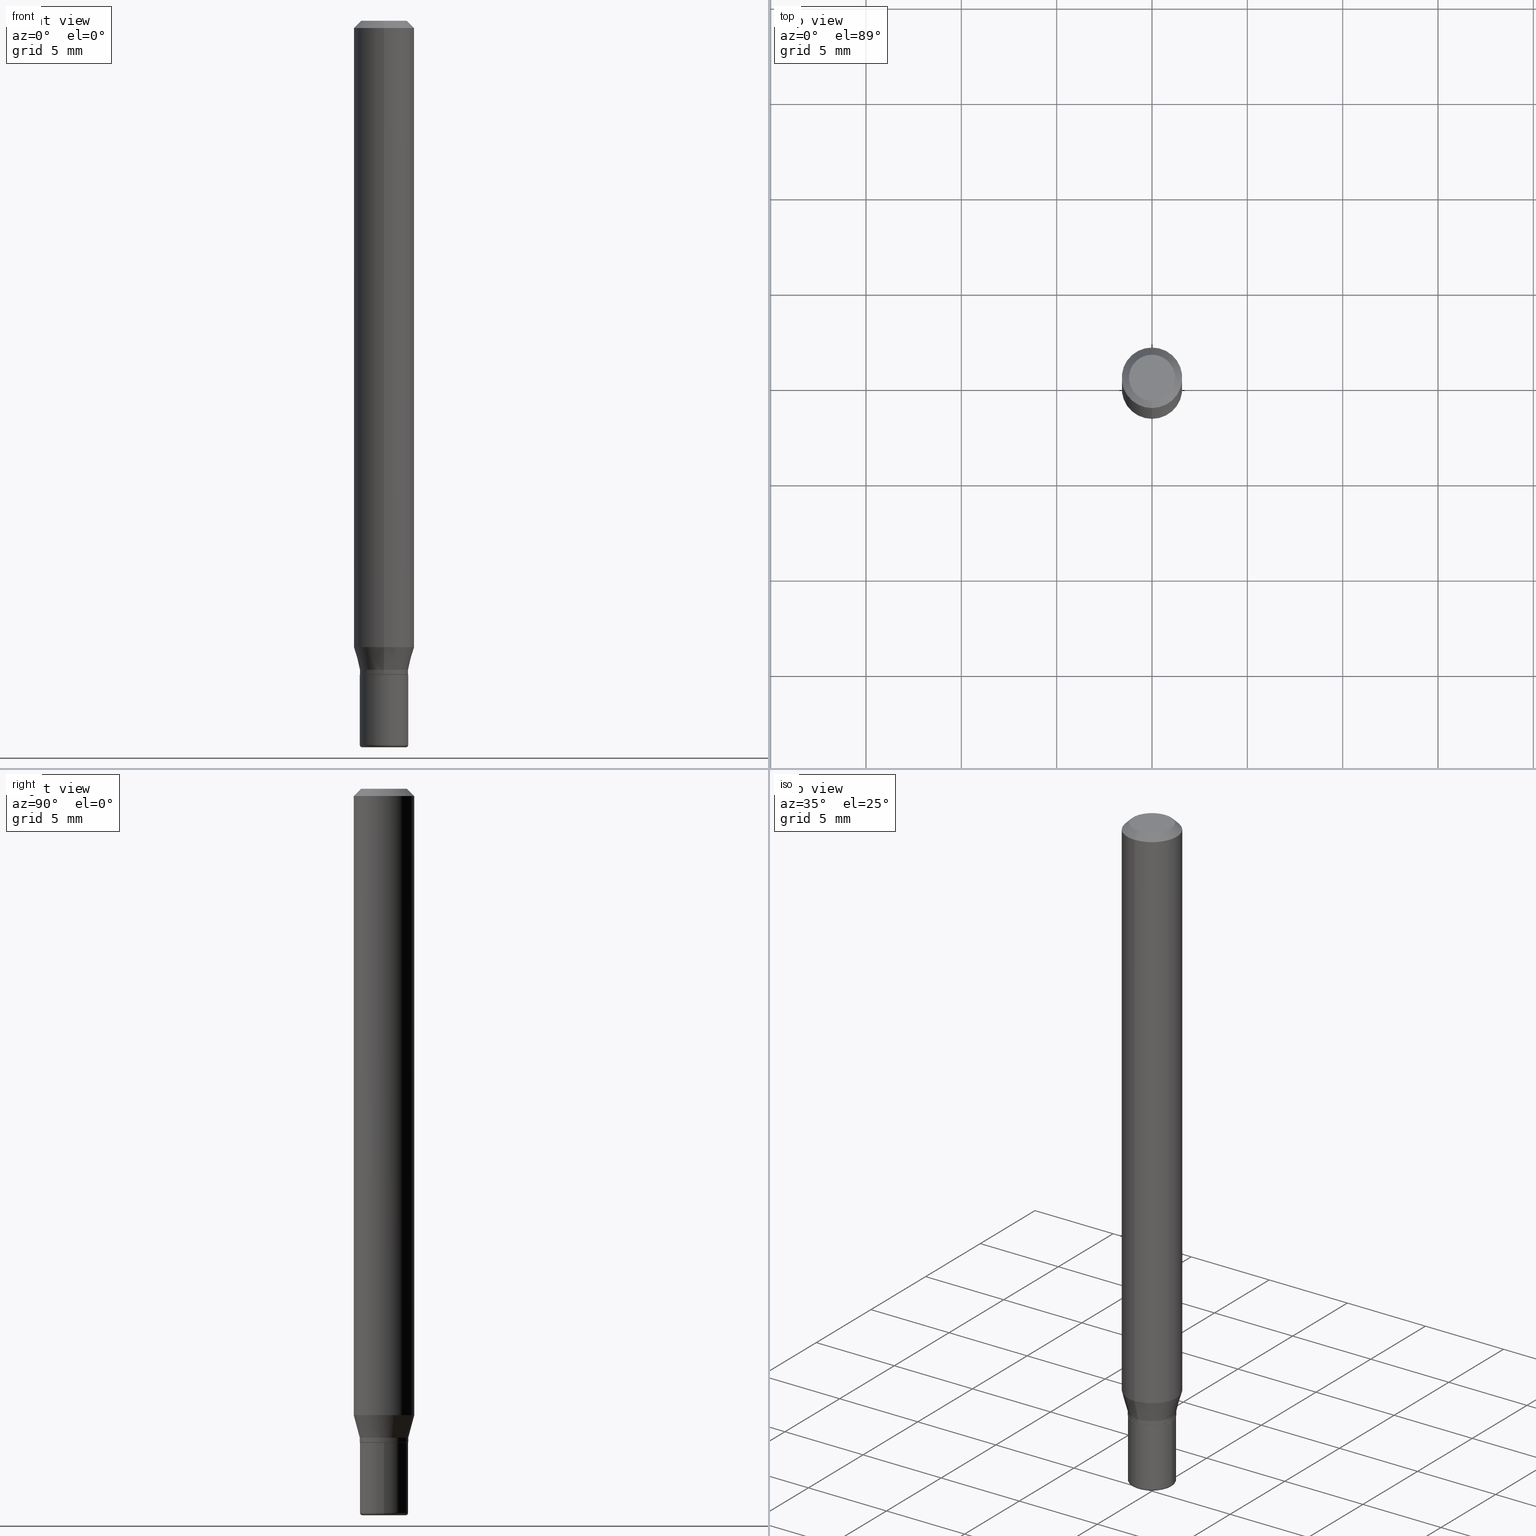
[diagram: canonical four-view strip — front | top / right | iso, engineering-drawing reading convention]
A machine part, canonical four-view strip (front | top / right | iso — engineering-drawing reading convention). The complete STEP part file that produces these views, byte-faithful:
ISO-10303-21;
HEADER;
FILE_DESCRIPTION (( 'STEP AP203' ),
    '1' );
FILE_NAME ('09076.STEP',
    '2024-02-29T21:52:46',
    ( '' ),
    ( '' ),
    'SwSTEP 2.0',
    'SolidWorks 2023',
    '' );
FILE_SCHEMA (( 'CONFIG_CONTROL_DESIGN' ));
ENDSEC;

DATA;
#1 = VERTEX_POINT ( 'NONE', #444 ) ;
#2 = DIRECTION ( 'NONE',  ( -2.445432708408292326E-29, 3.491533032914144486E-15, 1.000000000000000000 ) ) ;
#3 = CARTESIAN_POINT ( 'NONE',  ( 3.655975865246779122E-29, -5.219764601570503141E-15, -1.495000000000000107 ) ) ;
#4 = CIRCLE ( 'NONE', #118, 0.004999999999999903827 ) ;
#5 = DIRECTION ( 'NONE',  ( -6.982962677686265922E-15, -1.000000000000000000, 4.370956789862821150E-15 ) ) ;
#6 = DIRECTION ( 'NONE',  ( -2.445432708408292326E-29, 3.491533032914144486E-15, 1.000000000000000000 ) ) ;
#7 = APPLICATION_CONTEXT ( 'configuration controlled 3d designs of mechanical parts and assemblies' ) ;
#8 = PERSON_AND_ORGANIZATION_ROLE ( 'creator' ) ;
#9 = DIRECTION ( 'NONE',  ( -2.445432708408292606E-29, 3.491533032914144486E-15, 1.000000000000000000 ) ) ;
#10 = ADVANCED_FACE ( 'NONE', ( #80 ), #283, .T. ) ;
#11 = APPROVAL_STATUS ( 'not_yet_approved' ) ;
#12 = DIRECTION ( 'NONE',  ( 1.839019923739594399E-15, 0.2588190451025241257, 0.9659258262890673130 ) ) ;
#13 = AXIS2_PLACEMENT_3D ( 'NONE', #134, #379, #54 ) ;
#14 = CYLINDRICAL_SURFACE ( 'NONE', #228, 0.04999999999999996808 ) ;
#15 = DIRECTION ( 'NONE',  ( 2.438088387897960049E-29, -3.491481338843145188E-15, -1.000000000000000000 ) ) ;
#16 = DIRECTION ( 'NONE',  ( -2.445468806185136597E-29, 3.491481338843145583E-15, 1.000000000000000000 ) ) ;
#17 = DIRECTION ( 'NONE',  ( -2.445432708408292326E-29, 3.491533032914144486E-15, 1.000000000000000000 ) ) ;
#18 = LINE ( 'NONE', #43, #135 ) ;
#19 = ORIENTED_EDGE ( 'NONE', *, *, #461, .F. ) ;
#20 = CARTESIAN_POINT ( 'NONE',  ( 4.440892098500943678E-16, 0.06249999999999551747, -1.293349364905389098 ) ) ;
#21 = AXIS2_PLACEMENT_3D ( 'NONE', #111, #265, #32 ) ;
#22 = PRODUCT_DEFINITION_FORMATION_WITH_SPECIFIED_SOURCE ( 'ANY', '', #102, .NOT_KNOWN. ) ;
#23 = EDGE_CURVE ( 'NONE', #112, #231, #86, .T. ) ;
#24 = EDGE_LOOP ( 'NONE', ( #223, #30, #222, #33 ) ) ;
#25 = CLOSED_SHELL ( 'NONE', ( #104, #34, #355, #373, #447, #299, #113, #225, #507, #42, #368, #403 ) ) ;
#26 = AXIS2_PLACEMENT_3D ( 'NONE', #446, #360, #440 ) ;
#27 = CC_DESIGN_DATE_AND_TIME_ASSIGNMENT ( #453, #245, ( #378 ) ) ;
#28 = ORIENTED_EDGE ( 'NONE', *, *, #412, .F. ) ;
#29 = ORIENTED_EDGE ( 'NONE', *, *, #275, .T. ) ;
#30 = ORIENTED_EDGE ( 'NONE', *, *, #154, .T. ) ;
#31 = DIRECTION ( 'NONE',  ( -4.937700262165053702E-15, -0.7071067811866175168, 0.7071067811864775177 ) ) ;
#32 = DIRECTION ( 'NONE',  ( 1.000000000000000000, -6.982962677686267499E-15, 0.000000000000000000 ) ) ;
#33 = ORIENTED_EDGE ( 'NONE', *, *, #448, .F. ) ;
#34 = ADVANCED_FACE ( 'NONE', ( #240 ), #170, .T. ) ;
#35 = AXIS2_PLACEMENT_3D ( 'NONE', #297, #290, #166 ) ;
#36 = CC_DESIGN_SECURITY_CLASSIFICATION ( #378, ( #22 ) ) ;
#37 = ORIENTED_EDGE ( 'NONE', *, *, #83, .F. ) ;
#38 = DIRECTION ( 'NONE',  ( -2.445432708408292326E-29, 3.491533032914144486E-15, 1.000000000000000000 ) ) ;
#39 = CARTESIAN_POINT ( 'NONE',  ( -3.773273898774340269E-16, -0.04750000000000000749, 4.390350738982206831E-16 ) ) ;
#40 = CIRCLE ( 'NONE', #428, 0.04999999999999998196 ) ;
#41 = APPLICATION_PROTOCOL_DEFINITION ( 'international standard', 'config_control_design', 1994, #260 ) ;
#42 = ADVANCED_FACE ( 'NONE', ( #235 ), #482, .F. ) ;
#43 = CARTESIAN_POINT ( 'NONE',  ( -3.491481338843130397E-16, -0.04999999999999996808, 1.745766516457071306E-16 ) ) ;
#44 = APPROVAL_ROLE ( '' ) ;
#45 = CARTESIAN_POINT ( 'NONE',  ( 3.276879829267111616E-29, -4.678654264104954108E-15, -1.339999999999999858 ) ) ;
#46 = PLANE ( 'NONE',  #273 ) ;
#47 = COORDINATED_UNIVERSAL_TIME_OFFSET ( 5, 0, .BEHIND. ) ;
#48 = CARTESIAN_POINT ( 'NONE',  ( 3.300111439996990880E-29, -4.711823827917637768E-15, -1.349500000000000144 ) ) ;
#49 = CC_DESIGN_PERSON_AND_ORGANIZATION_ASSIGNMENT ( #410, #97, ( #22 ) ) ;
#50 = CARTESIAN_POINT ( 'NONE',  ( -0.04999999999999996114, 3.552713678800498168E-16, -2.459467545127451209E-30 ) ) ;
#51 = AXIS2_PLACEMENT_3D ( 'NONE', #253, #330, #298 ) ;
#52 = DATE_AND_TIME ( #289, #146 ) ;
#53 = DIRECTION ( 'NONE',  ( -2.445468806185136877E-29, 3.491481338843145188E-15, 1.000000000000000000 ) ) ;
#54 = DIRECTION ( 'NONE',  ( -6.982962677686265133E-15, -1.000000000000000000, 5.463695987328528015E-15 ) ) ;
#55 = APPROVAL_DATE_TIME ( #325, #144 ) ;
#56 = CARTESIAN_POINT ( 'NONE',  ( 3.668149062612366305E-31, -5.237299549371112845E-17, -0.01499999999999970281 ) ) ;
#57 = DIRECTION ( 'NONE',  ( -2.445468806185136597E-29, 3.491481338843145583E-15, 1.000000000000000000 ) ) ;
#58 =( NAMED_UNIT ( * ) SI_UNIT ( $, .STERADIAN. ) SOLID_ANGLE_UNIT ( ) );
#59 = DIRECTION ( 'NONE',  ( -2.445468806185136877E-29, 3.491481338843145188E-15, 1.000000000000000000 ) ) ;
#60 = UNCERTAINTY_MEASURE_WITH_UNIT (LENGTH_MEASURE( 1.000000000000000082E-05 ), #127, 'distance_accuracy_value', 'NONE');
#61 = AXIS2_PLACEMENT_3D ( 'NONE', #197, #280, #278 ) ;
#62 = AXIS2_PLACEMENT_3D ( 'NONE', #227, #351, #185 ) ;
#63 = EDGE_CURVE ( 'NONE', #313, #346, #94, .T. ) ;
#64 = ORIENTED_EDGE ( 'NONE', *, *, #239, .F. ) ;
#65 = ORIENTED_EDGE ( 'NONE', *, *, #160, .F. ) ;
#66 = CLOSED_SHELL ( 'NONE', ( #10, #106, #246, #79, #488, #318 ) ) ;
#67 = DIRECTION ( 'NONE',  ( 1.000000000000000000, -6.982962677686267499E-15, 0.000000000000000000 ) ) ;
#68 = CONICAL_SURFACE ( 'NONE', #491, 0.04999999999999998196, 0.2617993877991494633 ) ;
#69 = CARTESIAN_POINT ( 'NONE',  ( 0.000000000000000000, 0.000000000000000000, 0.000000000000000000 ) ) ;
#70 = DIRECTION ( 'NONE',  ( -1.000000000000000000, 7.105427357601061812E-15, 0.000000000000000000 ) ) ;
#71 = ORIENTED_EDGE ( 'NONE', *, *, #430, .T. ) ;
#72 = CARTESIAN_POINT ( 'NONE',  ( 0.000000000000000000, 0.000000000000000000, 0.000000000000000000 ) ) ;
#73 = ORIENTED_EDGE ( 'NONE', *, *, #322, .T. ) ;
#74 = EDGE_LOOP ( 'NONE', ( #421, #107 ) ) ;
#75 = FACE_OUTER_BOUND ( 'NONE', #342, .T. ) ;
#76 = AXIS2_PLACEMENT_3D ( 'NONE', #3, #162, #327 ) ;
#77 = VECTOR ( 'NONE', #468, 39.37007874015748143 ) ;
#78 = APPROVAL_PERSON_ORGANIZATION ( #215, #366, #168 ) ;
#79 = ADVANCED_FACE ( 'NONE', ( #75 ), #435, .T. ) ;
#80 = FACE_OUTER_BOUND ( 'NONE', #237, .T. ) ;
#81 = CARTESIAN_POINT ( 'NONE',  ( 3.668203209277704335E-29, -5.237222008264717388E-15, -1.499999999999999778 ) ) ;
#82 = ORIENTED_EDGE ( 'NONE', *, *, #510, .T. ) ;
#83 = EDGE_CURVE ( 'NONE', #187, #514, #159, .T. ) ;
#84 = MECHANICAL_CONTEXT ( 'NONE', #7, 'mechanical' ) ;
#85 = FACE_OUTER_BOUND ( 'NONE', #151, .T. ) ;
#86 = CIRCLE ( 'NONE', #61, 0.04999999999999996114 ) ;
#87 = CIRCLE ( 'NONE', #109, 0.05000000000000000278 ) ;
#88 = COORDINATED_UNIVERSAL_TIME_OFFSET ( 5, 0, .BEHIND. ) ;
#89 = DIRECTION ( 'NONE',  ( -6.982962677686265133E-15, -1.000000000000000000, 5.463695987328528015E-15 ) ) ;
#90 = COORDINATED_UNIVERSAL_TIME_OFFSET ( 5, 0, .BEHIND. ) ;
#91 = EDGE_CURVE ( 'NONE', #349, #266, #466, .T. ) ;
#92 = LINE ( 'NONE', #500, #285 ) ;
#93 = PLANE ( 'NONE',  #210 ) ;
#94 = CIRCLE ( 'NONE', #441, 0.04949999999999996070 ) ;
#95 = AXIS2_PLACEMENT_3D ( 'NONE', #48, #247, #243 ) ;
#96 = CC_DESIGN_APPROVAL ( #366, ( #378 ) ) ;
#97 = PERSON_AND_ORGANIZATION_ROLE ( 'design_supplier' ) ;
#98 = DIRECTION ( 'NONE',  ( 6.982962677686265922E-15, 1.000000000000000000, -3.491533032914144486E-15 ) ) ;
#99 = PLANE ( 'NONE',  #502 ) ;
#100 = CARTESIAN_POINT ( 'NONE',  ( 0.04500000000000000527, -5.551455328760599863E-15, -1.499999999999999778 ) ) ;
#101 =( GEOMETRIC_REPRESENTATION_CONTEXT ( 3 ) GLOBAL_UNCERTAINTY_ASSIGNED_CONTEXT ( ( #60 ) ) GLOBAL_UNIT_ASSIGNED_CONTEXT ( ( #127, #345, #58 ) ) REPRESENTATION_CONTEXT ( 'NONE', 'WORKASPACE' ) );
#102 = PRODUCT ( '09076', '09076', '', ( #84 ) ) ;
#103 = FACE_OUTER_BOUND ( 'NONE', #483, .T. ) ;
#104 = ADVANCED_FACE ( 'NONE', ( #362 ), #438, .T. ) ;
#105 = ORIENTED_EDGE ( 'NONE', *, *, #344, .T. ) ;
#106 = ADVANCED_FACE ( 'NONE', ( #321 ), #396, .T. ) ;
#107 = ORIENTED_EDGE ( 'NONE', *, *, #239, .T. ) ;
#108 = DIRECTION ( 'NONE',  ( -6.982962677686265922E-15, -1.000000000000000000, 5.518884835685384614E-15 ) ) ;
#109 = AXIS2_PLACEMENT_3D ( 'NONE', #422, #57, #465 ) ;
#110 = CARTESIAN_POINT ( 'NONE',  ( 4.440892098500943678E-16, 0.06249999999999995143, -0.01499999999999992138 ) ) ;
#111 = CARTESIAN_POINT ( 'NONE',  ( 3.668203209277704335E-29, -5.237222008264717388E-15, -1.499999999999999778 ) ) ;
#112 = VERTEX_POINT ( 'NONE', #274 ) ;
#113 = ADVANCED_FACE ( 'NONE', ( #230 ), #314, .T. ) ;
#114 = DIRECTION ( 'NONE',  ( -2.445432708408292326E-29, 3.491533032914144486E-15, 1.000000000000000000 ) ) ;
#115 = ORIENTED_EDGE ( 'NONE', *, *, #326, .F. ) ;
#116 = VERTEX_POINT ( 'NONE', #393 ) ;
#117 = CARTESIAN_POINT ( 'NONE',  ( 3.301334156351195229E-29, -4.713569594434094720E-15, -1.350000000000000089 ) ) ;
#118 = AXIS2_PLACEMENT_3D ( 'NONE', #296, #219, #250 ) ;
#119 = ORIENTED_EDGE ( 'NONE', *, *, #181, .T. ) ;
#120 = CARTESIAN_POINT ( 'NONE',  ( 3.301382888349935078E-29, -4.713499807438246596E-15, -1.350000000000000089 ) ) ;
#121 = CC_DESIGN_PERSON_AND_ORGANIZATION_ASSIGNMENT ( #496, #249, ( #22 ) ) ;
#122 = FACE_OUTER_BOUND ( 'NONE', #353, .T. ) ;
#123 = DATE_AND_TIME ( #255, #443 ) ;
#124 = FACE_OUTER_BOUND ( 'NONE', #224, .T. ) ;
#125 = CARTESIAN_POINT ( 'NONE',  ( -3.491481338842793159E-16, -0.05000000000000456857, -1.349499999999999922 ) ) ;
#126 = AXIS2_PLACEMENT_3D ( 'NONE', #301, #6, #480 ) ;
#127 =( CONVERSION_BASED_UNIT ( 'INCH', #494 ) LENGTH_UNIT ( ) NAMED_UNIT ( #404 ) );
#128 = DIRECTION ( 'NONE',  ( 2.445432708408292326E-29, -3.491533032914144486E-15, -1.000000000000000000 ) ) ;
#129 = APPROVAL_STATUS ( 'not_yet_approved' ) ;
#130 = CARTESIAN_POINT ( 'NONE',  ( 3.655975865246779122E-29, -5.219764601570503141E-15, -1.495000000000000107 ) ) ;
#131 = CARTESIAN_POINT ( 'NONE',  ( 3.552713678800826532E-16, 0.04999999999999529821, -1.340000000000000080 ) ) ;
#132 = CALENDAR_DATE ( 2024, 29, 2 ) ;
#133 = CARTESIAN_POINT ( 'NONE',  ( 0.000000000000000000, 0.000000000000000000, 0.000000000000000000 ) ) ;
#134 = CARTESIAN_POINT ( 'NONE',  ( 3.276879829267111616E-29, -4.678654264104954108E-15, -1.339999999999999858 ) ) ;
#135 = VECTOR ( 'NONE', #335, 39.37007874015748143 ) ;
#136 = PRODUCT_DEFINITION_SHAPE ( 'NONE', 'NONE',  #203 ) ;
#137 = LOCAL_TIME ( 16, 52, 46.00000000000000000, #88 ) ;
#138 = LINE ( 'NONE', #380, #367 ) ;
#139 = EDGE_CURVE ( 'NONE', #313, #231, #199, .T. ) ;
#140 = FACE_OUTER_BOUND ( 'NONE', #479, .T. ) ;
#141 = EDGE_LOOP ( 'NONE', ( #155, #105 ) ) ;
#142 = ORIENTED_EDGE ( 'NONE', *, *, #270, .F. ) ;
#143 = ORIENTED_EDGE ( 'NONE', *, *, #510, .F. ) ;
#144 = APPROVAL ( #11, 'UNSPECIFIED' ) ;
#145 = CIRCLE ( 'NONE', #51, 0.04750000000000000749 ) ;
#146 = LOCAL_TIME ( 16, 52, 46.00000000000000000, #47 ) ;
#147 = APPLICATION_PROTOCOL_DEFINITION ( 'international standard', 'config_control_design', 1994, #7 ) ;
#148 = ORIENTED_EDGE ( 'NONE', *, *, #63, .T. ) ;
#149 = ORIENTED_EDGE ( 'NONE', *, *, #91, .T. ) ;
#150 = DIRECTION ( 'NONE',  ( -2.445432708408292606E-29, 3.491533032914144486E-15, 1.000000000000000000 ) ) ;
#151 = EDGE_LOOP ( 'NONE', ( #269, #234, #207, #452 ) ) ;
#152 = DIRECTION ( 'NONE',  ( -6.982962677686265922E-15, -1.000000000000000000, 5.518884835685384614E-15 ) ) ;
#153 = CONICAL_SURFACE ( 'NONE', #13, 0.04999999999999998196, 0.2617993877991494633 ) ;
#154 = EDGE_CURVE ( 'NONE', #311, #363, #191, .T. ) ;
#155 = ORIENTED_EDGE ( 'NONE', *, *, #83, .T. ) ;
#156 = ORIENTED_EDGE ( 'NONE', *, *, #192, .F. ) ;
#157 = ORIENTED_EDGE ( 'NONE', *, *, #291, .T. ) ;
#158 = DIRECTION ( 'NONE',  ( -6.982962677686265922E-15, -1.000000000000000000, 3.491533032914144486E-15 ) ) ;
#159 = CIRCLE ( 'NONE', #384, 0.05000000000000000278 ) ;
#160 = EDGE_CURVE ( 'NONE', #279, #481, #501, .T. ) ;
#161 = CIRCLE ( 'NONE', #324, 0.04949999999999996070 ) ;
#162 = DIRECTION ( 'NONE',  ( -2.445468806185136597E-29, 3.491481338843145583E-15, 1.000000000000000000 ) ) ;
#163 = SECURITY_CLASSIFICATION_LEVEL ( 'unclassified' ) ;
#164 = DIRECTION ( 'NONE',  ( 6.982962677686265922E-15, 1.000000000000000000, -3.483106191921935554E-15 ) ) ;
#165 = APPROVAL_DATE_TIME ( #52, #366 ) ;
#166 = DIRECTION ( 'NONE',  ( -6.982962677686265922E-15, -1.000000000000000000, 3.483106191921935554E-15 ) ) ;
#167 = CARTESIAN_POINT ( 'NONE',  ( 3.552713678800498168E-16, 0.04999999999999996808, -1.745766516457071306E-16 ) ) ;
#168 = APPROVAL_ROLE ( '' ) ;
#169 = DIRECTION ( 'NONE',  ( -6.982962677686265133E-15, -1.000000000000000000, 5.463695987328528015E-15 ) ) ;
#170 = CONICAL_SURFACE ( 'NONE', #426, 0.04949999999999996070, 0.7853981633975507526 ) ;
#171 = DIRECTION ( 'NONE',  ( -2.445432708408292326E-29, 3.491533032914144486E-15, 1.000000000000000000 ) ) ;
#172 = APPROVAL_DATE_TIME ( #123, #506 ) ;
#173 = EDGE_CURVE ( 'NONE', #349, #481, #405, .T. ) ;
#174 = DIRECTION ( 'NONE',  ( -2.445432708408292326E-29, 3.491533032914144486E-15, 1.000000000000000000 ) ) ;
#175 = CARTESIAN_POINT ( 'NONE',  ( 0.04999999999999991257, -5.568912735454817265E-15, -1.495000000000000329 ) ) ;
#176 = DIRECTION ( 'NONE',  ( 1.000000000000000000, -6.982962677686266711E-15, 0.000000000000000000 ) ) ;
#177 = CARTESIAN_POINT ( 'NONE',  ( -3.456566525454369004E-16, -0.04950000000000467221, -1.349999999999999867 ) ) ;
#178 = PRODUCT_RELATED_PRODUCT_CATEGORY ( 'detail', '', ( #102 ) ) ;
#179 = CARTESIAN_POINT ( 'NONE',  ( 3.316907271900976589E-16, 0.04750000000000000749, -2.925419164602250137E-17 ) ) ;
#180 = ORIENTED_EDGE ( 'NONE', *, *, #493, .T. ) ;
#181 = EDGE_CURVE ( 'NONE', #432, #116, #436, .T. ) ;
#182 = VECTOR ( 'NONE', #352, 39.37007874015748854 ) ;
#183 = VECTOR ( 'NONE', #9, 39.37007874015748143 ) ;
#184 = ORIENTED_EDGE ( 'NONE', *, *, #173, .F. ) ;
#185 = DIRECTION ( 'NONE',  ( -6.982962677686265922E-15, -1.000000000000000000, 5.518884835685384614E-15 ) ) ;
#186 = AXIS2_PLACEMENT_3D ( 'NONE', #130, #462, #284 ) ;
#187 = VERTEX_POINT ( 'NONE', #309 ) ;
#188 = DIRECTION ( 'NONE',  ( -6.982962677686265922E-15, -1.000000000000000000, 3.491533032914144091E-15 ) ) ;
#189 = DIRECTION ( 'NONE',  ( -6.982962677686265922E-15, -1.000000000000000000, 3.491533032914144091E-15 ) ) ;
#190 = ORIENTED_EDGE ( 'NONE', *, *, #281, .T. ) ;
#191 = LINE ( 'NONE', #513, #509 ) ;
#192 = EDGE_CURVE ( 'NONE', #266, #349, #331, .T. ) ;
#193 = ORIENTED_EDGE ( 'NONE', *, *, #388, .F. ) ;
#194 = AXIS2_PLACEMENT_3D ( 'NONE', #117, #445, #158 ) ;
#195 = DIRECTION ( 'NONE',  ( -2.445468806185136597E-29, 3.491481338843145583E-15, 1.000000000000000000 ) ) ;
#196 = ORIENTED_EDGE ( 'NONE', *, *, #63, .F. ) ;
#197 = CARTESIAN_POINT ( 'NONE',  ( 3.300111439996990880E-29, -4.711823827917637768E-15, -1.349500000000000144 ) ) ;
#198 = EDGE_CURVE ( 'NONE', #1, #400, #310, .T. ) ;
#199 = LINE ( 'NONE', #364, #242 ) ;
#200 = VECTOR ( 'NONE', #338, 39.37007874015748143 ) ;
#201 = LOCAL_TIME ( 16, 52, 46.00000000000000000, #455 ) ;
#202 = PERSON_AND_ORGANIZATION ( #233, #503 ) ;
#203 = PRODUCT_DEFINITION ( 'UNKNOWN', '', #22, #409 ) ;
#204 = CARTESIAN_POINT ( 'NONE',  ( 3.655975865246779683E-29, -5.219764601570503930E-15, -1.495000000000000329 ) ) ;
#205 = DIRECTION ( 'NONE',  ( 1.000000000000000000, -6.982962677686266711E-15, 0.000000000000000000 ) ) ;
#206 = SHAPE_DEFINITION_REPRESENTATION ( #136, #458 ) ;
#207 = ORIENTED_EDGE ( 'NONE', *, *, #412, .T. ) ;
#208 = CALENDAR_DATE ( 2024, 29, 2 ) ;
#209 = AXIS2_PLACEMENT_3D ( 'NONE', #354, #218, #205 ) ;
#210 = AXIS2_PLACEMENT_3D ( 'NONE', #179, #499, #98 ) ;
#211 = DIRECTION ( 'NONE',  ( 1.000000000000000000, -6.982962677686265922E-15, 4.876176775795935793E-29 ) ) ;
#212 = PERSON_AND_ORGANIZATION ( #233, #503 ) ;
#213 = LINE ( 'NONE', #376, #385 ) ;
#214 = CC_DESIGN_PERSON_AND_ORGANIZATION_ASSIGNMENT ( #282, #492, ( #378 ) ) ;
#215 = PERSON_AND_ORGANIZATION ( #233, #503 ) ;
#216 = DIRECTION ( 'NONE',  ( -6.982962677686265922E-15, -1.000000000000000000, 3.483106191921935554E-15 ) ) ;
#217 = CARTESIAN_POINT ( 'NONE',  ( 3.162798840338729731E-29, -4.515772030665694516E-15, -1.293349364905388876 ) ) ;
#218 = DIRECTION ( 'NONE',  ( -2.445468806185136597E-29, 3.491481338843145583E-15, 1.000000000000000000 ) ) ;
#219 = DIRECTION ( 'NONE',  ( -6.982962677686266711E-15, -1.000000000000000000, 3.491481338843145583E-15 ) ) ;
#220 = CONICAL_SURFACE ( 'NONE', #397, 0.06250000000000000000, 0.7853981633974488341 ) ;
#221 = APPROVAL_PERSON_ORGANIZATION ( #212, #506, #44 ) ;
#222 = ORIENTED_EDGE ( 'NONE', *, *, #423, .F. ) ;
#223 = ORIENTED_EDGE ( 'NONE', *, *, #388, .T. ) ;
#224 = EDGE_LOOP ( 'NONE', ( #184, #149, #29, #19 ) ) ;
#225 = ADVANCED_FACE ( 'NONE', ( #122 ), #220, .T. ) ;
#226 = ORIENTED_EDGE ( 'NONE', *, *, #173, .T. ) ;
#227 = CARTESIAN_POINT ( 'NONE',  ( 3.301334156351195229E-29, -4.713569594434094720E-15, -1.350000000000000089 ) ) ;
#228 = AXIS2_PLACEMENT_3D ( 'NONE', #133, #411, #416 ) ;
#229 = VERTEX_POINT ( 'NONE', #469 ) ;
#230 = FACE_OUTER_BOUND ( 'NONE', #504, .T. ) ;
#231 = VERTEX_POINT ( 'NONE', #125 ) ;
#232 = DIRECTION ( 'NONE',  ( -2.445468806185136597E-29, 3.491481338843145583E-15, 1.000000000000000000 ) ) ;
#233 = PERSON ( 'UNSPECIFIED', 'UNSPECIFIED', 'UNSPECIFIED', ('UNSPECIFIED'), ('UNSPECIFIED'), ('UNSPECIFIED') ) ;
#234 = ORIENTED_EDGE ( 'NONE', *, *, #23, .T. ) ;
#235 = FACE_OUTER_BOUND ( 'NONE', #316, .T. ) ;
#236 = VECTOR ( 'NONE', #12, 39.37007874015748854 ) ;
#237 = EDGE_LOOP ( 'NONE', ( #276, #226, #65, #511 ) ) ;
#238 = CARTESIAN_POINT ( 'NONE',  ( 0.000000000000000000, 0.000000000000000000, 0.000000000000000000 ) ) ;
#239 = EDGE_CURVE ( 'NONE', #400, #1, #145, .T. ) ;
#240 = FACE_OUTER_BOUND ( 'NONE', #317, .T. ) ;
#241 = COORDINATED_UNIVERSAL_TIME_OFFSET ( 5, 0, .BEHIND. ) ;
#242 = VECTOR ( 'NONE', #31, 39.37007874015748143 ) ;
#243 = DIRECTION ( 'NONE',  ( -6.982962677686265133E-15, -1.000000000000000000, 5.463695987328530381E-15 ) ) ;
#244 = CONICAL_SURFACE ( 'NONE', #295, 0.06250000000000000000, 0.7853981633974488341 ) ;
#245 = DATE_TIME_ROLE ( 'classification_date' ) ;
#246 = ADVANCED_FACE ( 'NONE', ( #424 ), #46, .F. ) ;
#247 = DIRECTION ( 'NONE',  ( -2.445432708408292326E-29, 3.491533032914144486E-15, 1.000000000000000000 ) ) ;
#248 = ORIENTED_EDGE ( 'NONE', *, *, #326, .T. ) ;
#249 = PERSON_AND_ORGANIZATION_ROLE ( 'creator' ) ;
#250 = DIRECTION ( 'NONE',  ( 1.000000000000000000, -6.982962677686273021E-15, 0.000000000000000000 ) ) ;
#251 = CARTESIAN_POINT ( 'NONE',  ( -4.287811248607203282E-16, -0.06250000000000005551, -0.01499999999999948597 ) ) ;
#252 = CC_DESIGN_PERSON_AND_ORGANIZATION_ASSIGNMENT ( #382, #328, ( #102 ) ) ;
#253 = CARTESIAN_POINT ( 'NONE',  ( -6.680610484932883231E-45, 9.538423244268342009E-31, 2.731872548347987796E-16 ) ) ;
#254 = EDGE_CURVE ( 'NONE', #481, #514, #463, .T. ) ;
#255 = CALENDAR_DATE ( 2024, 29, 2 ) ;
#256 = LINE ( 'NONE', #420, #200 ) ;
#257 = DIRECTION ( 'NONE',  ( -2.445432708408292326E-29, 3.491533032914144486E-15, 1.000000000000000000 ) ) ;
#258 = EDGE_LOOP ( 'NONE', ( #248, #73, #193, #449 ) ) ;
#259 = LINE ( 'NONE', #131, #236 ) ;
#260 = APPLICATION_CONTEXT ( 'configuration controlled 3d designs of mechanical parts and assemblies' ) ;
#261 = AXIS2_PLACEMENT_3D ( 'NONE', #72, #232, #484 ) ;
#262 = AXIS2_PLACEMENT_3D ( 'NONE', #292, #257, #89 ) ;
#263 = ORIENTED_EDGE ( 'NONE', *, *, #139, .F. ) ;
#264 = DIRECTION ( 'NONE',  ( -2.445432708408292326E-29, 3.491533032914144486E-15, 1.000000000000000000 ) ) ;
#265 = DIRECTION ( 'NONE',  ( -2.445468806185136597E-29, 3.491481338843145583E-15, 1.000000000000000000 ) ) ;
#266 = VERTEX_POINT ( 'NONE', #100 ) ;
#267 = DIRECTION ( 'NONE',  ( -6.982962677686265133E-15, -1.000000000000000000, 3.491533032914144880E-15 ) ) ;
#268 = DIRECTION ( 'NONE',  ( 2.445432708408292326E-29, -3.491533032914144486E-15, -1.000000000000000000 ) ) ;
#269 = ORIENTED_EDGE ( 'NONE', *, *, #281, .F. ) ;
#270 = EDGE_CURVE ( 'NONE', #346, #112, #92, .T. ) ;
#271 = EDGE_LOOP ( 'NONE', ( #156, #350 ) ) ;
#272 = AXIS2_PLACEMENT_3D ( 'NONE', #425, #450, #70 ) ;
#273 = AXIS2_PLACEMENT_3D ( 'NONE', #470, #15, #337 ) ;
#274 = CARTESIAN_POINT ( 'NONE',  ( 3.552713678800834913E-16, 0.04999999999999535372, -1.349500000000000366 ) ) ;
#275 = EDGE_CURVE ( 'NONE', #266, #279, #4, .T. ) ;
#276 = ORIENTED_EDGE ( 'NONE', *, *, #192, .T. ) ;
#277 = DIRECTION ( 'NONE',  ( 1.000000000000000000, -6.982962677686274599E-15, 0.000000000000000000 ) ) ;
#278 = DIRECTION ( 'NONE',  ( -6.982962677686265133E-15, -1.000000000000000000, 5.463695987328530381E-15 ) ) ;
#279 = VERTEX_POINT ( 'NONE', #175 ) ;
#280 = DIRECTION ( 'NONE',  ( -2.445432708408292326E-29, 3.491533032914144486E-15, 1.000000000000000000 ) ) ;
#281 = EDGE_CURVE ( 'NONE', #112, #229, #381, .T. ) ;
#282 = PERSON_AND_ORGANIZATION ( #233, #503 ) ;
#283 = TOROIDAL_SURFACE ( 'NONE', #76, 0.04500000000000000527, 0.004999999999999903827 ) ;
#284 = DIRECTION ( 'NONE',  ( 1.000000000000000000, -6.982962677686267499E-15, 4.883557194083112901E-29 ) ) ;
#285 = VECTOR ( 'NONE', #417, 39.37007874015748143 ) ;
#286 = APPROVAL_PERSON_ORGANIZATION ( #202, #144, #370 ) ;
#287 = CARTESIAN_POINT ( 'NONE',  ( 3.301334156351195229E-29, -4.713569594434094720E-15, -1.350000000000000089 ) ) ;
#288 = DIRECTION ( 'NONE',  ( 6.982962677686265922E-15, 1.000000000000000000, -3.483106191921935554E-15 ) ) ;
#289 = CALENDAR_DATE ( 2024, 29, 2 ) ;
#290 = DIRECTION ( 'NONE',  ( -2.445432708408292326E-29, 3.491533032914144486E-15, 1.000000000000000000 ) ) ;
#291 = EDGE_CURVE ( 'NONE', #346, #313, #161, .T. ) ;
#292 = CARTESIAN_POINT ( 'NONE',  ( 3.276879829267111616E-29, -4.678654264104954108E-15, -1.339999999999999858 ) ) ;
#293 = DIRECTION ( 'NONE',  ( -6.982962677686265133E-15, -1.000000000000000000, 5.463695987328528015E-15 ) ) ;
#294 = AXIS2_PLACEMENT_3D ( 'NONE', #477, #264, #267 ) ;
#295 = AXIS2_PLACEMENT_3D ( 'NONE', #495, #128, #288 ) ;
#296 = CARTESIAN_POINT ( 'NONE',  ( 0.04500000000000000527, -5.533997922066385616E-15, -1.495000000000000107 ) ) ;
#297 = CARTESIAN_POINT ( 'NONE',  ( 3.668149062612366305E-31, -5.237299549371112845E-17, -0.01499999999999970281 ) ) ;
#298 = DIRECTION ( 'NONE',  ( -6.982962677686265133E-15, -1.000000000000000000, 3.491533032914144091E-15 ) ) ;
#299 = ADVANCED_FACE ( 'NONE', ( #498 ), #153, .T. ) ;
#300 = EDGE_LOOP ( 'NONE', ( #358, #434, #37, #437 ) ) ;
#301 = CARTESIAN_POINT ( 'NONE',  ( -6.680610484932883231E-45, 9.538423244268342009E-31, 2.731872548347987796E-16 ) ) ;
#302 = AXIS2_PLACEMENT_3D ( 'NONE', #81, #399, #67 ) ;
#303 = AXIS2_PLACEMENT_3D ( 'NONE', #217, #171, #413 ) ;
#304 = LOCAL_TIME ( 16, 52, 46.00000000000000000, #241 ) ;
#305 = ORIENTED_EDGE ( 'NONE', *, *, #198, .F. ) ;
#306 = CC_DESIGN_DATE_AND_TIME_ASSIGNMENT ( #487, #407, ( #203 ) ) ;
#307 = ORIENTED_EDGE ( 'NONE', *, *, #322, .F. ) ;
#308 = CARTESIAN_POINT ( 'NONE',  ( 3.162798840338729731E-29, -4.515772030665694516E-15, -1.293349364905388876 ) ) ;
#309 = CARTESIAN_POINT ( 'NONE',  ( 0.05000000000000000278, -5.062647941322559931E-15, -1.350000000000000089 ) ) ;
#310 = CIRCLE ( 'NONE', #126, 0.04750000000000000749 ) ;
#311 = VERTEX_POINT ( 'NONE', #20 ) ;
#312 = CIRCLE ( 'NONE', #35, 0.06250000000000000000 ) ;
#313 = VERTEX_POINT ( 'NONE', #177 ) ;
#314 = CYLINDRICAL_SURFACE ( 'NONE', #374, 0.06250000000000000000 ) ;
#315 = CC_DESIGN_PERSON_AND_ORGANIZATION_ASSIGNMENT ( #419, #8, ( #203 ) ) ;
#316 = EDGE_LOOP ( 'NONE', ( #196, #391 ) ) ;
#317 = EDGE_LOOP ( 'NONE', ( #148, #343, #387, #263 ) ) ;
#318 = ADVANCED_FACE ( 'NONE', ( #414 ), #99, .F. ) ;
#319 = CARTESIAN_POINT ( 'NONE',  ( 3.301334156351195229E-29, -4.713569594434094720E-15, -1.350000000000000089 ) ) ;
#320 = ORIENTED_EDGE ( 'NONE', *, *, #348, .T. ) ;
#321 = FACE_OUTER_BOUND ( 'NONE', #300, .T. ) ;
#322 = EDGE_CURVE ( 'NONE', #229, #311, #259, .T. ) ;
#323 = ORIENTED_EDGE ( 'NONE', *, *, #431, .T. ) ;
#324 = AXIS2_PLACEMENT_3D ( 'NONE', #287, #17, #490 ) ;
#325 = DATE_AND_TIME ( #132, #137 ) ;
#326 = EDGE_CURVE ( 'NONE', #432, #229, #516, .T. ) ;
#327 = DIRECTION ( 'NONE',  ( 1.000000000000000000, -6.982962677686267499E-15, 4.883557194083112901E-29 ) ) ;
#328 = PERSON_AND_ORGANIZATION_ROLE ( 'design_owner' ) ;
#329 = CARTESIAN_POINT ( 'NONE',  ( -3.491481338842803513E-16, -0.05000000000000465877, -1.339999999999999636 ) ) ;
#330 = DIRECTION ( 'NONE',  ( -2.445432708408292326E-29, 3.491533032914144486E-15, 1.000000000000000000 ) ) ;
#331 = CIRCLE ( 'NONE', #21, 0.04500000000000000527 ) ;
#332 =( LENGTH_UNIT ( ) NAMED_UNIT ( * ) SI_UNIT ( $, .METRE. ) );
#333 = CARTESIAN_POINT ( 'NONE',  ( 3.534950110406824997E-16, 0.04949999999999524919, -1.350000000000000311 ) ) ;
#334 = APPROVAL_STATUS ( 'not_yet_approved' ) ;
#335 = DIRECTION ( 'NONE',  ( -2.445432708408292606E-29, 3.491533032914144486E-15, 1.000000000000000000 ) ) ;
#336 = CARTESIAN_POINT ( 'NONE',  ( 3.276879829267111616E-29, -4.678654264104954108E-15, -1.339999999999999858 ) ) ;
#337 = DIRECTION ( 'NONE',  ( -1.000000000000000000, 6.982962677686265922E-15, -4.876176775795935793E-29 ) ) ;
#338 = DIRECTION ( 'NONE',  ( 4.937700262164550409E-15, 0.7071067811865454633, -0.7071067811865495711 ) ) ;
#339 = ORIENTED_EDGE ( 'NONE', *, *, #254, .F. ) ;
#340 = AXIS2_PLACEMENT_3D ( 'NONE', #56, #372, #216 ) ;
#341 = DIRECTION ( 'NONE',  ( -2.438088387897960049E-29, 3.491481338843145188E-15, 1.000000000000000000 ) ) ;
#342 = EDGE_LOOP ( 'NONE', ( #339, #476, #323, #395 ) ) ;
#343 = ORIENTED_EDGE ( 'NONE', *, *, #270, .T. ) ;
#344 = EDGE_CURVE ( 'NONE', #514, #187, #87, .T. ) ;
#345 =( NAMED_UNIT ( * ) PLANE_ANGLE_UNIT ( ) SI_UNIT ( $, .RADIAN. ) );
#346 = VERTEX_POINT ( 'NONE', #333 ) ;
#347 = CONICAL_SURFACE ( 'NONE', #62, 0.04949999999999996070, 0.7853981633975507526 ) ;
#348 = EDGE_CURVE ( 'NONE', #311, #116, #478, .T. ) ;
#349 = VERTEX_POINT ( 'NONE', #505 ) ;
#350 = ORIENTED_EDGE ( 'NONE', *, *, #91, .F. ) ;
#351 = DIRECTION ( 'NONE',  ( -2.445432708408292326E-29, 3.491533032914144486E-15, 1.000000000000000000 ) ) ;
#352 = DIRECTION ( 'NONE',  ( -1.807323732225324223E-15, -0.2588190451025173533, 0.9659258262890690894 ) ) ;
#353 = EDGE_LOOP ( 'NONE', ( #418, #305, #398, #82 ) ) ;
#354 = CARTESIAN_POINT ( 'NONE',  ( 3.655975865246779683E-29, -5.219764601570503930E-15, -1.495000000000000329 ) ) ;
#355 = ADVANCED_FACE ( 'NONE', ( #140 ), #244, .T. ) ;
#356 = CARTESIAN_POINT ( 'NONE',  ( -3.491481338842803513E-16, -0.05000000000000465877, -1.339999999999999636 ) ) ;
#357 = CIRCLE ( 'NONE', #467, 0.06250000000000000000 ) ;
#358 = ORIENTED_EDGE ( 'NONE', *, *, #160, .T. ) ;
#359 = DIRECTION ( 'NONE',  ( -2.445468806185136597E-29, 3.491481338843145583E-15, 1.000000000000000000 ) ) ;
#360 = DIRECTION ( 'NONE',  ( 0.000000000000000000, 0.000000000000000000, 1.000000000000000000 ) ) ;
#361 = ORIENTED_EDGE ( 'NONE', *, *, #139, .T. ) ;
#362 = FACE_OUTER_BOUND ( 'NONE', #485, .T. ) ;
#363 = VERTEX_POINT ( 'NONE', #110 ) ;
#364 = CARTESIAN_POINT ( 'NONE',  ( -3.456566525454369004E-16, -0.04950000000000467221, -1.349999999999999867 ) ) ;
#365 = LINE ( 'NONE', #251, #77 ) ;
#366 = APPROVAL ( #129, 'UNSPECIFIED' ) ;
#367 = VECTOR ( 'NONE', #408, 39.37007874015748143 ) ;
#368 = ADVANCED_FACE ( 'NONE', ( #103 ), #347, .T. ) ;
#369 = CARTESIAN_POINT ( 'NONE',  ( 3.668149062612366305E-31, -5.237299549371112845E-17, -0.01499999999999970281 ) ) ;
#370 = APPROVAL_ROLE ( '' ) ;
#371 = FACE_OUTER_BOUND ( 'NONE', #74, .T. ) ;
#372 = DIRECTION ( 'NONE',  ( -2.445432708408292326E-29, 3.491533032914144486E-15, 1.000000000000000000 ) ) ;
#373 = ADVANCED_FACE ( 'NONE', ( #429 ), #389, .T. ) ;
#374 = AXIS2_PLACEMENT_3D ( 'NONE', #401, #38, #188 ) ;
#375 = VECTOR ( 'NONE', #59, 39.37007874015748143 ) ;
#376 = CARTESIAN_POINT ( 'NONE',  ( 0.04999999999999996114, -3.491481338843130397E-16, 2.438088387897966145E-30 ) ) ;
#377 = CIRCLE ( 'NONE', #95, 0.04999999999999996114 ) ;
#378 = SECURITY_CLASSIFICATION ( '', '', #163 ) ;
#379 = DIRECTION ( 'NONE',  ( -2.445432708408292326E-29, 3.491533032914144486E-15, 1.000000000000000000 ) ) ;
#380 = CARTESIAN_POINT ( 'NONE',  ( -4.364351673553916201E-16, -0.06250000000000000000, 2.182208145571340057E-16 ) ) ;
#381 = LINE ( 'NONE', #167, #183 ) ;
#382 = PERSON_AND_ORGANIZATION ( #233, #503 ) ;
#383 = CARTESIAN_POINT ( 'NONE',  ( -4.364351673553912750E-16, -0.06250000000000005551, -0.01499999999999948597 ) ) ;
#384 = AXIS2_PLACEMENT_3D ( 'NONE', #120, #359, #277 ) ;
#385 = VECTOR ( 'NONE', #53, 39.37007874015748143 ) ;
#386 = ORIENTED_EDGE ( 'NONE', *, *, #402, .T. ) ;
#387 = ORIENTED_EDGE ( 'NONE', *, *, #430, .F. ) ;
#388 = EDGE_CURVE ( 'NONE', #116, #311, #357, .T. ) ;
#389 = CYLINDRICAL_SURFACE ( 'NONE', #472, 0.06250000000000000000 ) ;
#390 = AXIS2_PLACEMENT_3D ( 'NONE', #238, #195, #486 ) ;
#391 = ORIENTED_EDGE ( 'NONE', *, *, #291, .F. ) ;
#392 = ORIENTED_EDGE ( 'NONE', *, *, #423, .T. ) ;
#393 = CARTESIAN_POINT ( 'NONE',  ( -4.364351673553597698E-16, -0.06250000000000449640, -1.293349364905388654 ) ) ;
#394 = DIRECTION ( 'NONE',  ( -2.445432708408292326E-29, 3.491533032914144486E-15, 1.000000000000000000 ) ) ;
#395 = ORIENTED_EDGE ( 'NONE', *, *, #344, .F. ) ;
#396 = CYLINDRICAL_SURFACE ( 'NONE', #261, 0.04999999999999996114 ) ;
#397 = AXIS2_PLACEMENT_3D ( 'NONE', #369, #268, #164 ) ;
#398 = ORIENTED_EDGE ( 'NONE', *, *, #508, .T. ) ;
#399 = DIRECTION ( 'NONE',  ( -2.445468806185136597E-29, 3.491481338843145583E-15, 1.000000000000000000 ) ) ;
#400 = VERTEX_POINT ( 'NONE', #39 ) ;
#401 = CARTESIAN_POINT ( 'NONE',  ( 0.000000000000000000, 0.000000000000000000, 0.000000000000000000 ) ) ;
#402 = EDGE_CURVE ( 'NONE', #400, #512, #365, .T. ) ;
#403 = ADVANCED_FACE ( 'NONE', ( #85 ), #14, .T. ) ;
#404 = DIMENSIONAL_EXPONENTS ( 1.000000000000000000, 0.000000000000000000, 0.000000000000000000, 0.000000000000000000, 0.000000000000000000, 0.000000000000000000, 0.000000000000000000 ) ;
#405 = CIRCLE ( 'NONE', #272, 0.004999999999999903827 ) ;
#406 = CIRCLE ( 'NONE', #340, 0.06250000000000000000 ) ;
#407 = DATE_TIME_ROLE ( 'creation_date' ) ;
#408 = DIRECTION ( 'NONE',  ( -2.445432708408292606E-29, 3.491533032914144486E-15, 1.000000000000000000 ) ) ;
#409 = DESIGN_CONTEXT ( 'detailed design', #260, 'design' ) ;
#410 = PERSON_AND_ORGANIZATION ( #233, #503 ) ;
#411 = DIRECTION ( 'NONE',  ( -2.445432708408292326E-29, 3.491533032914144486E-15, 1.000000000000000000 ) ) ;
#412 = EDGE_CURVE ( 'NONE', #231, #432, #18, .T. ) ;
#413 = DIRECTION ( 'NONE',  ( -6.982962677686265922E-15, -1.000000000000000000, 4.370956789862821150E-15 ) ) ;
#414 = FACE_OUTER_BOUND ( 'NONE', #271, .T. ) ;
#415 = CALENDAR_DATE ( 2024, 29, 2 ) ;
#416 = DIRECTION ( 'NONE',  ( -6.982962677686265133E-15, -1.000000000000000000, 3.491533032914144880E-15 ) ) ;
#417 = DIRECTION ( 'NONE',  ( 5.024295867788576727E-15, 0.7071067811866224018, 0.7071067811864726327 ) ) ;
#418 = ORIENTED_EDGE ( 'NONE', *, *, #402, .F. ) ;
#419 = PERSON_AND_ORGANIZATION ( #233, #503 ) ;
#420 = CARTESIAN_POINT ( 'NONE',  ( 4.364351673553919652E-16, 0.06249999999999995143, -0.01499999999999992138 ) ) ;
#421 = ORIENTED_EDGE ( 'NONE', *, *, #198, .T. ) ;
#422 = CARTESIAN_POINT ( 'NONE',  ( 3.301382888349935078E-29, -4.713499807438246596E-15, -1.350000000000000089 ) ) ;
#423 = EDGE_CURVE ( 'NONE', #512, #363, #312, .T. ) ;
#424 = FACE_OUTER_BOUND ( 'NONE', #141, .T. ) ;
#425 = CARTESIAN_POINT ( 'NONE',  ( -0.04500000000000000527, -4.900020370478457773E-15, -1.495000000000000107 ) ) ;
#426 = AXIS2_PLACEMENT_3D ( 'NONE', #319, #2, #152 ) ;
#427 = ORIENTED_EDGE ( 'NONE', *, *, #348, .F. ) ;
#428 = AXIS2_PLACEMENT_3D ( 'NONE', #336, #464, #293 ) ;
#429 = FACE_OUTER_BOUND ( 'NONE', #24, .T. ) ;
#430 = EDGE_CURVE ( 'NONE', #231, #112, #377, .T. ) ;
#431 = EDGE_CURVE ( 'NONE', #279, #187, #213, .T. ) ;
#432 = VERTEX_POINT ( 'NONE', #329 ) ;
#433 = AXIS2_PLACEMENT_3D ( 'NONE', #204, #16, #176 ) ;
#434 = ORIENTED_EDGE ( 'NONE', *, *, #254, .T. ) ;
#435 = CYLINDRICAL_SURFACE ( 'NONE', #390, 0.04999999999999996114 ) ;
#436 = LINE ( 'NONE', #356, #182 ) ;
#437 = ORIENTED_EDGE ( 'NONE', *, *, #431, .F. ) ;
#438 = CYLINDRICAL_SURFACE ( 'NONE', #294, 0.04999999999999996808 ) ;
#439 = ORIENTED_EDGE ( 'NONE', *, *, #508, .F. ) ;
#440 = DIRECTION ( 'NONE',  ( 1.000000000000000000, 0.000000000000000000, 0.000000000000000000 ) ) ;
#441 = AXIS2_PLACEMENT_3D ( 'NONE', #515, #114, #108 ) ;
#442 = TOROIDAL_SURFACE ( 'NONE', #186, 0.04500000000000000527, 0.004999999999999903827 ) ;
#443 = LOCAL_TIME ( 16, 52, 46.00000000000000000, #90 ) ;
#444 = CARTESIAN_POINT ( 'NONE',  ( 3.840629472727447874E-16, 0.04750000000000000749, 1.073394357713768884E-16 ) ) ;
#445 = DIRECTION ( 'NONE',  ( -2.445432708408292046E-29, 3.491533032914144486E-15, 1.000000000000000000 ) ) ;
#446 = CARTESIAN_POINT ( 'NONE',  ( 0.000000000000000000, 0.000000000000000000, 0.000000000000000000 ) ) ;
#447 = ADVANCED_FACE ( 'NONE', ( #489 ), #68, .T. ) ;
#448 = EDGE_CURVE ( 'NONE', #116, #512, #138, .T. ) ;
#449 = ORIENTED_EDGE ( 'NONE', *, *, #181, .F. ) ;
#450 = DIRECTION ( 'NONE',  ( 7.105427357601001859E-15, 1.000000000000000000, -3.491481338843145583E-15 ) ) ;
#451 = MANIFOLD_SOLID_BREP ( 'Body-Move/Copy2[2]', #25 ) ;
#452 = ORIENTED_EDGE ( 'NONE', *, *, #493, .F. ) ;
#453 = DATE_AND_TIME ( #208, #201 ) ;
#454 = CIRCLE ( 'NONE', #433, 0.04999999999999991257 ) ;
#455 = COORDINATED_UNIVERSAL_TIME_OFFSET ( 5, 0, .BEHIND. ) ;
#456 = CC_DESIGN_APPROVAL ( #506, ( #203 ) ) ;
#457 = CARTESIAN_POINT ( 'NONE',  ( -0.05000000000000000278, -4.611360836624325249E-15, -1.350000000000000089 ) ) ;
#458 = ADVANCED_BREP_SHAPE_REPRESENTATION ( '09076', ( #460, #451, #26 ), #101 ) ;
#459 = CARTESIAN_POINT ( 'NONE',  ( 3.582686580359765478E-29, -5.359686688179452536E-15, -1.499999999999999778 ) ) ;
#460 = MANIFOLD_SOLID_BREP ( 'Body-Move/Copy2[1]', #66 ) ;
#461 = EDGE_CURVE ( 'NONE', #481, #279, #454, .T. ) ;
#462 = DIRECTION ( 'NONE',  ( -2.445468806185136597E-29, 3.491481338843145583E-15, 1.000000000000000000 ) ) ;
#463 = LINE ( 'NONE', #50, #375 ) ;
#464 = DIRECTION ( 'NONE',  ( -2.445432708408292326E-29, 3.491533032914144486E-15, 1.000000000000000000 ) ) ;
#465 = DIRECTION ( 'NONE',  ( 1.000000000000000000, -6.982962677686274599E-15, 0.000000000000000000 ) ) ;
#466 = CIRCLE ( 'NONE', #302, 0.04500000000000000527 ) ;
#467 = AXIS2_PLACEMENT_3D ( 'NONE', #308, #394, #5 ) ;
#468 = DIRECTION ( 'NONE',  ( -4.851104656540966641E-15, -0.7071067811865503483, -0.7071067811865446862 ) ) ;
#469 = CARTESIAN_POINT ( 'NONE',  ( 3.996802888650884119E-16, 0.04999999999999529821, -1.340000000000000080 ) ) ;
#470 = CARTESIAN_POINT ( 'NONE',  ( 3.491481338843463198E-16, 0.04999999999999529127, -1.350000000000000311 ) ) ;
#471 = DIRECTION ( 'NONE',  ( -2.445432708408292326E-29, 3.491533032914144486E-15, 1.000000000000000000 ) ) ;
#472 = AXIS2_PLACEMENT_3D ( 'NONE', #69, #471, #189 ) ;
#473 = CC_DESIGN_APPROVAL ( #144, ( #22 ) ) ;
#474 = ORIENTED_EDGE ( 'NONE', *, *, #23, .F. ) ;
#475 = ORIENTED_EDGE ( 'NONE', *, *, #154, .F. ) ;
#476 = ORIENTED_EDGE ( 'NONE', *, *, #461, .T. ) ;
#477 = CARTESIAN_POINT ( 'NONE',  ( 0.000000000000000000, 0.000000000000000000, 0.000000000000000000 ) ) ;
#478 = CIRCLE ( 'NONE', #303, 0.06250000000000000000 ) ;
#479 = EDGE_LOOP ( 'NONE', ( #64, #386, #392, #439 ) ) ;
#480 = DIRECTION ( 'NONE',  ( -6.982962677686265133E-15, -1.000000000000000000, 3.491533032914144091E-15 ) ) ;
#481 = VERTEX_POINT ( 'NONE', #497 ) ;
#482 = PLANE ( 'NONE',  #194 ) ;
#483 = EDGE_LOOP ( 'NONE', ( #142, #157, #361, #474 ) ) ;
#484 = DIRECTION ( 'NONE',  ( 1.000000000000000000, -6.982962677686265922E-15, 4.876176775795936353E-29 ) ) ;
#485 = EDGE_LOOP ( 'NONE', ( #71, #190, #115, #28 ) ) ;
#486 = DIRECTION ( 'NONE',  ( 1.000000000000000000, -6.982962677686265922E-15, 4.876176775795936353E-29 ) ) ;
#487 = DATE_AND_TIME ( #415, #304 ) ;
#488 = ADVANCED_FACE ( 'NONE', ( #124 ), #442, .T. ) ;
#489 = FACE_OUTER_BOUND ( 'NONE', #258, .T. ) ;
#490 = DIRECTION ( 'NONE',  ( -6.982962677686265922E-15, -1.000000000000000000, 5.518884835685384614E-15 ) ) ;
#491 = AXIS2_PLACEMENT_3D ( 'NONE', #45, #174, #169 ) ;
#492 = PERSON_AND_ORGANIZATION_ROLE ( 'classification_officer' ) ;
#493 = EDGE_CURVE ( 'NONE', #229, #432, #40, .T. ) ;
#494 = LENGTH_MEASURE_WITH_UNIT ( LENGTH_MEASURE( 0.02539999999999999897 ), #332 );
#495 = CARTESIAN_POINT ( 'NONE',  ( 3.668149062612366305E-31, -5.237299549371112845E-17, -0.01499999999999970281 ) ) ;
#496 = PERSON_AND_ORGANIZATION ( #233, #503 ) ;
#497 = CARTESIAN_POINT ( 'NONE',  ( -0.04999999999999991257, -4.611360836624325249E-15, -1.495000000000000329 ) ) ;
#498 = FACE_OUTER_BOUND ( 'NONE', #518, .T. ) ;
#499 = DIRECTION ( 'NONE',  ( 2.445432708408292046E-29, -3.491533032914144486E-15, -1.000000000000000000 ) ) ;
#500 = CARTESIAN_POINT ( 'NONE',  ( 3.517186542012822477E-16, 0.04949999999999524919, -1.350000000000000311 ) ) ;
#501 = CIRCLE ( 'NONE', #209, 0.04999999999999991257 ) ;
#502 = AXIS2_PLACEMENT_3D ( 'NONE', #459, #341, #211 ) ;
#503 = ORGANIZATION ( 'UNSPECIFIED', 'UNSPECIFIED', '' ) ;
#504 = EDGE_LOOP ( 'NONE', ( #475, #320, #517, #143 ) ) ;
#505 = CARTESIAN_POINT ( 'NONE',  ( -0.04500000000000000527, -4.890985505431563165E-15, -1.499999999999999778 ) ) ;
#506 = APPROVAL ( #334, 'UNSPECIFIED' ) ;
#507 = ADVANCED_FACE ( 'NONE', ( #371 ), #93, .F. ) ;
#508 = EDGE_CURVE ( 'NONE', #1, #363, #256, .T. ) ;
#509 = VECTOR ( 'NONE', #150, 39.37007874015748143 ) ;
#510 = EDGE_CURVE ( 'NONE', #363, #512, #406, .T. ) ;
#511 = ORIENTED_EDGE ( 'NONE', *, *, #275, .F. ) ;
#512 = VERTEX_POINT ( 'NONE', #383 ) ;
#513 = CARTESIAN_POINT ( 'NONE',  ( 4.440892098500625669E-16, 0.06250000000000000000, -2.182208145571340057E-16 ) ) ;
#514 = VERTEX_POINT ( 'NONE', #457 ) ;
#515 = CARTESIAN_POINT ( 'NONE',  ( 3.301334156351195229E-29, -4.713569594434094720E-15, -1.350000000000000089 ) ) ;
#516 = CIRCLE ( 'NONE', #262, 0.04999999999999998196 ) ;
#517 = ORIENTED_EDGE ( 'NONE', *, *, #448, .T. ) ;
#518 = EDGE_LOOP ( 'NONE', ( #307, #180, #119, #427 ) ) ;
ENDSEC;
END-ISO-10303-21;
